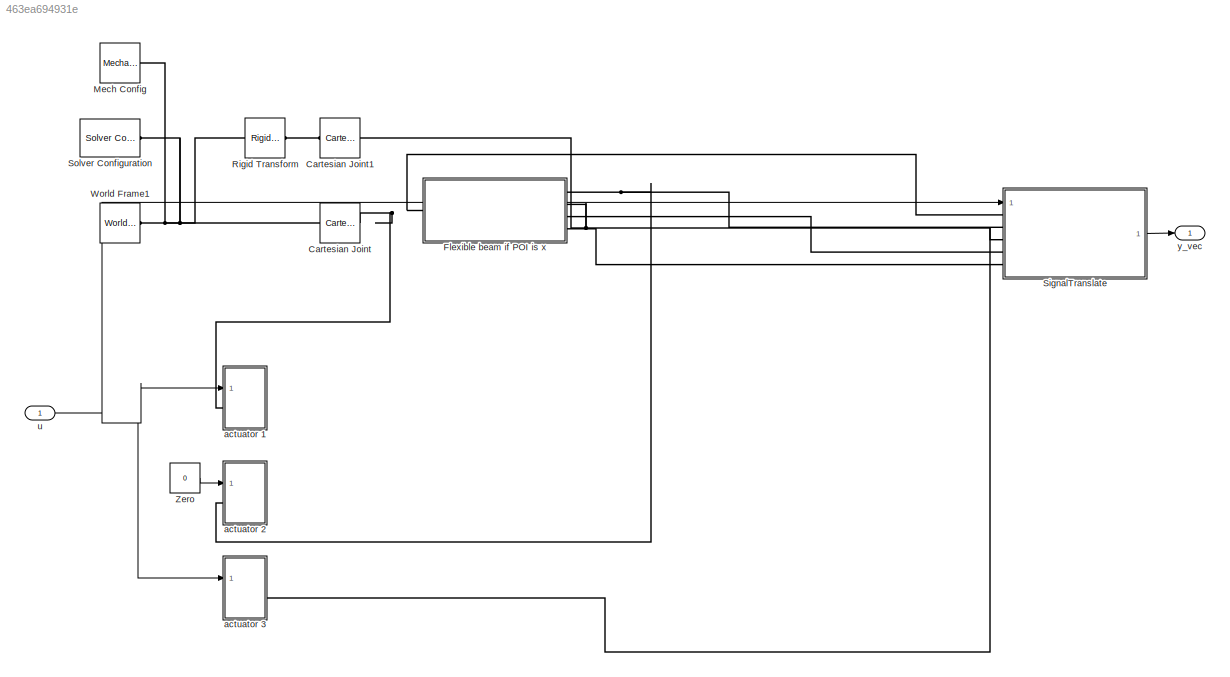
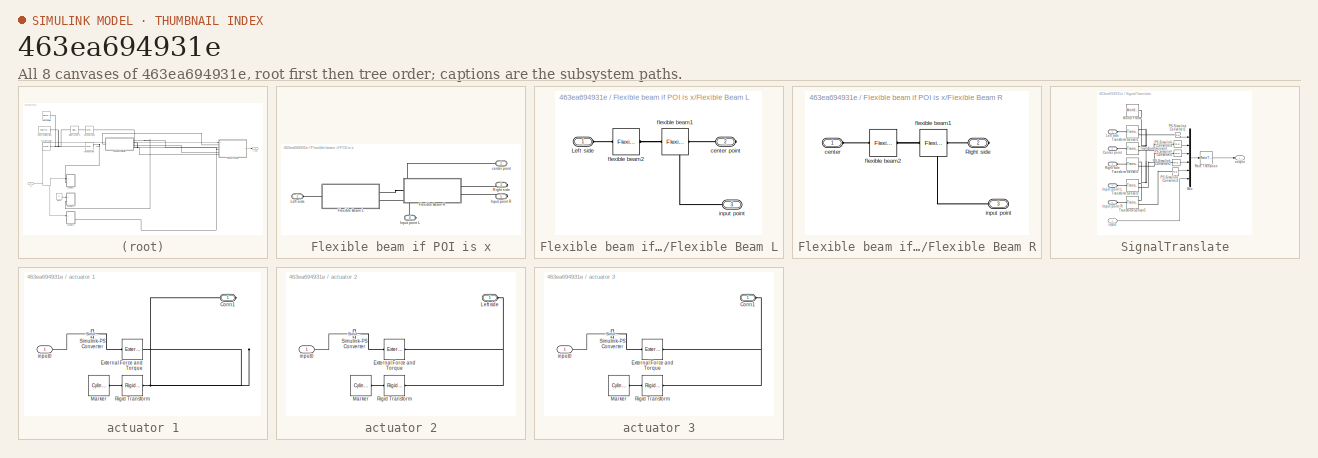
[diagram: thumbnail index - all 8 canvases of the model, root first then tree order]
MODEL slx_463ea694931e
KIND model
CONFIG AbsTol = auto
CONFIG EnableMultiTasking = off
CONFIG FixedStep = Ts
CONFIG MaxStep = auto
CONFIG MinStep = auto
CONFIG RelTol = auto
CONFIG SampleTimeConstraint = Unconstrained
CONFIG SolverName = ode23t
CONFIG StartTime = 0.0
CONFIG StopTime = Tend
BLOCK [Reference] Cartesian Joint  REF=sm_lib/Joints/Cartesian
Joint
  Ports = [0, 0, 0, 0, 0, 1, 1]
  SourceBlock = sm_lib/Joints/Cartesian\nJoint
  SourceProductBaseCode = MS
  SourceType = Cartesian\nJoint
BLOCK [Reference] Cartesian Joint1  REF=sm_lib/Joints/Cartesian
Joint
  Ports = [0, 0, 0, 0, 0, 1, 1]
  SourceBlock = sm_lib/Joints/Cartesian\nJoint
  SourceProductBaseCode = MS
  SourceType = Cartesian\nJoint
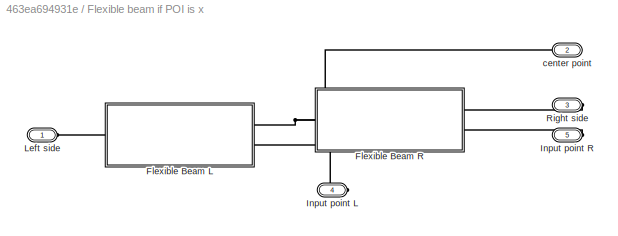
BLOCK [SubSystem] Flexible beam if POI is x
  Ports = [0, 0, 0, 0, 0, 1, 4]
  RequestExecContextInheritance = off
BLOCK [SubSystem] Flexible beam if POI is x/Flexible Beam L
  Ports = [0, 0, 0, 0, 0, 1, 2]
  RequestExecContextInheritance = off
BLOCK [PMIOPort] Flexible beam if POI is x/Flexible Beam L/Left side
  Side = Left
BLOCK [PMIOPort] Flexible beam if POI is x/Flexible Beam L/center point
  Port = 2
  Side = Right
BLOCK [Reference] Flexible beam if POI is x/Flexible Beam L/flexible beam1  REF=sm_lib/Body Elements/Flexible Bodies/Beams/Flexible Rectangular Beam
  Ports = [0, 0, 0, 0, 0, 1, 1]
  SourceBlock = sm_lib/Body Elements/Flexible Bodies/Beams/Flexible Rectangular Beam
  SourceProductBaseCode = MS
  SourceType = Flexible Rectangular Beam
BLOCK [Reference] Flexible beam if POI is x/Flexible Beam L/flexible beam2  REF=sm_lib/Body Elements/Flexible Bodies/Beams/Flexible Rectangular Beam
  Ports = [0, 0, 0, 0, 0, 1, 1]
  SourceBlock = sm_lib/Body Elements/Flexible Bodies/Beams/Flexible Rectangular Beam
  SourceProductBaseCode = MS
  SourceType = Flexible Rectangular Beam
BLOCK [PMIOPort] Flexible beam if POI is x/Flexible Beam L/input point
  Port = 3
  Side = Right
BLOCK [SubSystem] Flexible beam if POI is x/Flexible Beam R
  Ports = [0, 0, 0, 0, 0, 1, 2]
  RequestExecContextInheritance = off
BLOCK [PMIOPort] Flexible beam if POI is x/Flexible Beam R/Right side
  Port = 2
  Side = Right
BLOCK [PMIOPort] Flexible beam if POI is x/Flexible Beam R/center
  Side = Left
BLOCK [Reference] Flexible beam if POI is x/Flexible Beam R/flexible beam1  REF=sm_lib/Body Elements/Flexible Bodies/Beams/Flexible Rectangular Beam
  Ports = [0, 0, 0, 0, 0, 1, 1]
  SourceBlock = sm_lib/Body Elements/Flexible Bodies/Beams/Flexible Rectangular Beam
  SourceProductBaseCode = MS
  SourceType = Flexible Rectangular Beam
BLOCK [Reference] Flexible beam if POI is x/Flexible Beam R/flexible beam2  REF=sm_lib/Body Elements/Flexible Bodies/Beams/Flexible Rectangular Beam
  Ports = [0, 0, 0, 0, 0, 1, 1]
  SourceBlock = sm_lib/Body Elements/Flexible Bodies/Beams/Flexible Rectangular Beam
  SourceProductBaseCode = MS
  SourceType = Flexible Rectangular Beam
BLOCK [PMIOPort] Flexible beam if POI is x/Flexible Beam R/input point
  Port = 3
  Side = Right
BLOCK [PMIOPort] Flexible beam if POI is x/Input point L
  Port = 4
  Side = Right
BLOCK [PMIOPort] Flexible beam if POI is x/Input point R
  Port = 5
  Side = Right
BLOCK [PMIOPort] Flexible beam if POI is x/Left side
  Side = Left
BLOCK [PMIOPort] Flexible beam if POI is x/Right side
  Port = 3
  Side = Right
BLOCK [PMIOPort] Flexible beam if POI is x/center point
  Port = 2
  Side = Right
BLOCK [Reference] Mech Config  REF=sm_lib/Utilities/Mechanism
Configuration
  Ports = [0, 0, 0, 0, 0, 0, 1]
  SourceBlock = sm_lib/Utilities/Mechanism\nConfiguration
  SourceProductBaseCode = MS
  SourceType = Mechanism\nConfiguration
BLOCK [Reference] Rigid Transform  REF=sm_lib/Frames and
Transforms/Rigid
Transform
  Ports = [0, 0, 0, 0, 0, 1, 1]
  SourceBlock = sm_lib/Frames and\nTransforms/Rigid\nTransform
  SourceProductBaseCode = MS
  SourceType = Rigid\nTransform
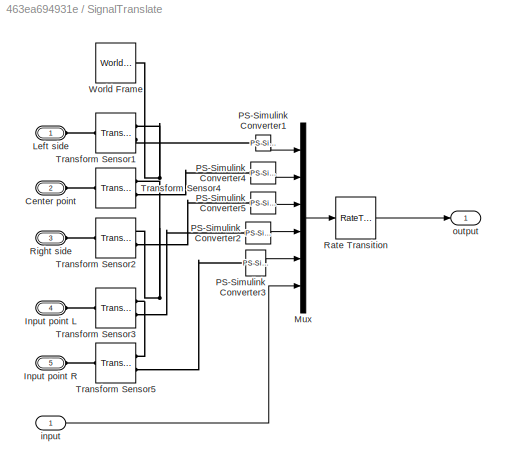
BLOCK [SubSystem] SignalTranslate
  PortSchema = {"entries":[{"content":{"sides":[{"content":{"connectorIds":["LConn1","LConn2","LConn3","LConn4","LConn5","In1"]},"type":"ConnectorPlacement.EquallySpacedRectSide","uuid":"234c9a80-d23e-49e1-9cbd-99fca326f122"},{"content":{"connectorIds":["Out1"],"side":"RIGHT"},"type":"ConnectorPlacement.EquallySpacedRectSide","uuid":"6db32332-576e-4b5c-b4cd-e0ec4edd412e"},{"content":{"connectorIds":[],"side":"TO...<+285ch>
  Ports = [1, 1, 0, 0, 0, 5]
  RequestExecContextInheritance = off
BLOCK [PMIOPort] SignalTranslate/Center point
  Port = 2
  Side = Left
BLOCK [PMIOPort] SignalTranslate/Input point L
  Port = 4
  Side = Left
BLOCK [PMIOPort] SignalTranslate/Input point R
  Port = 5
  Side = Left
BLOCK [PMIOPort] SignalTranslate/Left side
  Side = Left
BLOCK [Mux] SignalTranslate/Mux
  DisplayOption = bar
  Inputs = 6
  Ports = [6, 1]
BLOCK [Reference] SignalTranslate/PS-Simulink Converter1  REF=nesl_utility/PS-Simulink
Converter
  Ports = [0, 1, 0, 0, 0, 1]
  SourceBlock = nesl_utility/PS-Simulink\nConverter
  SourceProductBaseCode = PW,SS
  SourceType = PS-Simulink\nConverter
BLOCK [Reference] SignalTranslate/PS-Simulink Converter2  REF=nesl_utility/PS-Simulink
Converter
  Ports = [0, 1, 0, 0, 0, 1]
  SourceBlock = nesl_utility/PS-Simulink\nConverter
  SourceProductBaseCode = PW,SS
  SourceType = PS-Simulink\nConverter
BLOCK [Reference] SignalTranslate/PS-Simulink Converter3  REF=nesl_utility/PS-Simulink
Converter
  Ports = [0, 1, 0, 0, 0, 1]
  SourceBlock = nesl_utility/PS-Simulink\nConverter
  SourceProductBaseCode = PW,SS
  SourceType = PS-Simulink\nConverter
BLOCK [Reference] SignalTranslate/PS-Simulink Converter4  REF=nesl_utility/PS-Simulink
Converter
  Ports = [0, 1, 0, 0, 0, 1]
  SourceBlock = nesl_utility/PS-Simulink\nConverter
  SourceProductBaseCode = PW,SS
  SourceType = PS-Simulink\nConverter
BLOCK [Reference] SignalTranslate/PS-Simulink Converter5  REF=nesl_utility/PS-Simulink
Converter
  Ports = [0, 1, 0, 0, 0, 1]
  SourceBlock = nesl_utility/PS-Simulink\nConverter
  SourceProductBaseCode = PW,SS
  SourceType = PS-Simulink\nConverter
BLOCK [RateTransition] SignalTranslate/Rate Transition
  OutPortSampleTime = Ts
BLOCK [PMIOPort] SignalTranslate/Right side
  Port = 3
  Side = Left
BLOCK [Reference] SignalTranslate/Transform Sensor1  REF=sm_lib/Frames and
Transforms/Transform
Sensor
  Ports = [0, 0, 0, 0, 0, 1, 2]
  SourceBlock = sm_lib/Frames and\nTransforms/Transform\nSensor
  SourceProductBaseCode = MS
  SourceType = Transform\nSensor
BLOCK [Reference] SignalTranslate/Transform Sensor2  REF=sm_lib/Frames and
Transforms/Transform
Sensor
  Ports = [0, 0, 0, 0, 0, 1, 2]
  SourceBlock = sm_lib/Frames and\nTransforms/Transform\nSensor
  SourceProductBaseCode = MS
  SourceType = Transform\nSensor
BLOCK [Reference] SignalTranslate/Transform Sensor3  REF=sm_lib/Frames and
Transforms/Transform
Sensor
  Ports = [0, 0, 0, 0, 0, 1, 2]
  SourceBlock = sm_lib/Frames and\nTransforms/Transform\nSensor
  SourceProductBaseCode = MS
  SourceType = Transform\nSensor
BLOCK [Reference] SignalTranslate/Transform Sensor4  REF=sm_lib/Frames and
Transforms/Transform
Sensor
  Ports = [0, 0, 0, 0, 0, 1, 2]
  SourceBlock = sm_lib/Frames and\nTransforms/Transform\nSensor
  SourceProductBaseCode = MS
  SourceType = Transform\nSensor
BLOCK [Reference] SignalTranslate/Transform Sensor5  REF=sm_lib/Frames and
Transforms/Transform
Sensor
  Ports = [0, 0, 0, 0, 0, 1, 2]
  SourceBlock = sm_lib/Frames and\nTransforms/Transform\nSensor
  SourceProductBaseCode = MS
  SourceType = Transform\nSensor
BLOCK [Reference] SignalTranslate/World Frame  REF=sm_lib/Frames and
Transforms/World Frame
  Ports = [0, 0, 0, 0, 0, 0, 1]
  SourceBlock = sm_lib/Frames and\nTransforms/World Frame
  SourceProductBaseCode = MS
  SourceType = World Frame
BLOCK [Inport] SignalTranslate/input
BLOCK [Outport] SignalTranslate/output
BLOCK [Reference] Solver Configuration  REF=nesl_utility/Solver
Configuration
  Ports = [0, 0, 0, 0, 0, 0, 1]
  SourceBlock = nesl_utility/Solver\nConfiguration
  SourceProductBaseCode = SS
  SourceType = Solver\nConfiguration
BLOCK [Reference] World Frame1  REF=sm_lib/Frames and
Transforms/World Frame
  Ports = [0, 0, 0, 0, 0, 0, 1]
  SourceBlock = sm_lib/Frames and\nTransforms/World Frame
  SourceProductBaseCode = MS
  SourceType = World Frame
BLOCK [Constant] Zero
  OutDataTypeStr = Inherit: Inherit via back propagation
  Value = 0
BLOCK [SubSystem] actuator 1
  Ports = [1, 0, 0, 0, 0, 1]
  RequestExecContextInheritance = off
BLOCK [PMIOPort] actuator 1/Conn1
  Side = Left
BLOCK [Reference] actuator 1/External Force and Torque  REF=sm_lib/Forces and
Torques/External Force
and Torque
  Ports = [0, 0, 0, 0, 0, 1, 1]
  SourceBlock = sm_lib/Forces and\nTorques/External Force\nand Torque
  SourceProductBaseCode = MS
  SourceType = External Force\nand Torque
BLOCK [Reference] actuator 1/Marker  REF=sm_lib/Body Elements/Cylindrical Solid
  Ports = [0, 0, 0, 0, 0, 1]
  SourceBlock = sm_lib/Body Elements/Cylindrical Solid
  SourceProductBaseCode = MS
  SourceType = Cylindrical Solid
BLOCK [Reference] actuator 1/Rigid Transform  REF=sm_lib/Frames and
Transforms/Rigid
Transform
  Ports = [0, 0, 0, 0, 0, 1, 1]
  SourceBlock = sm_lib/Frames and\nTransforms/Rigid\nTransform
  SourceProductBaseCode = MS
  SourceType = Rigid\nTransform
BLOCK [Reference] actuator 1/Simulink-PS Converter  REF=nesl_utility/Simulink-PS
Converter
  Ports = [1, 0, 0, 0, 0, 0, 1]
  SourceBlock = nesl_utility/Simulink-PS\nConverter
  SourceProductBaseCode = PW,SS
  SourceType = Simulink-PS\nConverter
BLOCK [Inport] actuator 1/input0
BLOCK [SubSystem] actuator 2
  Ports = [1, 0, 0, 0, 0, 1]
  RequestExecContextInheritance = off
BLOCK [Reference] actuator 2/External Force and Torque  REF=sm_lib/Forces and
Torques/External Force
and Torque
  Ports = [0, 0, 0, 0, 0, 1, 1]
  SourceBlock = sm_lib/Forces and\nTorques/External Force\nand Torque
  SourceProductBaseCode = MS
  SourceType = External Force\nand Torque
BLOCK [PMIOPort] actuator 2/Left side
  Side = Left
BLOCK [Reference] actuator 2/Marker  REF=sm_lib/Body Elements/Cylindrical Solid
  Ports = [0, 0, 0, 0, 0, 1]
  SourceBlock = sm_lib/Body Elements/Cylindrical Solid
  SourceProductBaseCode = MS
  SourceType = Cylindrical Solid
BLOCK [Reference] actuator 2/Rigid Transform  REF=sm_lib/Frames and
Transforms/Rigid
Transform
  Ports = [0, 0, 0, 0, 0, 1, 1]
  SourceBlock = sm_lib/Frames and\nTransforms/Rigid\nTransform
  SourceProductBaseCode = MS
  SourceType = Rigid\nTransform
BLOCK [Reference] actuator 2/Simulink-PS Converter  REF=nesl_utility/Simulink-PS
Converter
  Ports = [1, 0, 0, 0, 0, 0, 1]
  SourceBlock = nesl_utility/Simulink-PS\nConverter
  SourceProductBaseCode = PW,SS
  SourceType = Simulink-PS\nConverter
BLOCK [Inport] actuator 2/input0
BLOCK [SubSystem] actuator 3
  Ports = [1, 0, 0, 0, 0, 1]
  RequestExecContextInheritance = off
BLOCK [PMIOPort] actuator 3/Conn1
  Side = Left
BLOCK [Reference] actuator 3/External Force and Torque  REF=sm_lib/Forces and
Torques/External Force
and Torque
  Ports = [0, 0, 0, 0, 0, 1, 1]
  SourceBlock = sm_lib/Forces and\nTorques/External Force\nand Torque
  SourceProductBaseCode = MS
  SourceType = External Force\nand Torque
BLOCK [Reference] actuator 3/Marker  REF=sm_lib/Body Elements/Cylindrical Solid
  Ports = [0, 0, 0, 0, 0, 1]
  SourceBlock = sm_lib/Body Elements/Cylindrical Solid
  SourceProductBaseCode = MS
  SourceType = Cylindrical Solid
BLOCK [Reference] actuator 3/Rigid Transform  REF=sm_lib/Frames and
Transforms/Rigid
Transform
  Ports = [0, 0, 0, 0, 0, 1, 1]
  SourceBlock = sm_lib/Frames and\nTransforms/Rigid\nTransform
  SourceProductBaseCode = MS
  SourceType = Rigid\nTransform
BLOCK [Reference] actuator 3/Simulink-PS Converter  REF=nesl_utility/Simulink-PS
Converter
  Ports = [1, 0, 0, 0, 0, 0, 1]
  SourceBlock = nesl_utility/Simulink-PS\nConverter
  SourceProductBaseCode = PW,SS
  SourceType = Simulink-PS\nConverter
BLOCK [Inport] actuator 3/input0
BLOCK [Inport] u
BLOCK [Outport] y_vec
LINE SignalTranslate/Mux:1 -> SignalTranslate/Rate Transition:1
LINE SignalTranslate/PS-Simulink Converter1:1 -> SignalTranslate/Mux:1
LINE SignalTranslate/PS-Simulink Converter2:1 -> SignalTranslate/Mux:4
LINE SignalTranslate/PS-Simulink Converter3:1 -> SignalTranslate/Mux:5
LINE SignalTranslate/PS-Simulink Converter4:1 -> SignalTranslate/Mux:2
LINE SignalTranslate/PS-Simulink Converter5:1 -> SignalTranslate/Mux:3
LINE SignalTranslate/Rate Transition:1 -> SignalTranslate/output:1
LINE SignalTranslate/input:1 -> SignalTranslate/Mux:6
LINE SignalTranslate:1 -> y_vec:1
LINE Zero:1 -> actuator 2:1
LINE actuator 1/input0:1 -> actuator 1/Simulink-PS Converter:1
LINE actuator 2/input0:1 -> actuator 2/Simulink-PS Converter:1
LINE actuator 3/input0:1 -> actuator 3/Simulink-PS Converter:1
NET u:1 -> SignalTranslate:1, actuator 1:1, actuator 3:1
PLINE Cartesian Joint1:LConn1 -- Rigid Transform:RConn1
PNET net1: Cartesian Joint1:RConn1 -- Flexible beam if POI is x:RConn2 -- SignalTranslate:LConn3 -- actuator 3:LConn1
PNET net2: Cartesian Joint:LConn1 -- Mech Config:RConn1 -- Rigid Transform:LConn1 -- Solver Configuration:RConn1 -- World Frame1:RConn1
PNET net3: Cartesian Joint:RConn1 -- Flexible beam if POI is x:LConn1 -- SignalTranslate:LConn1 -- actuator 1:LConn1
PLINE Flexible beam if POI is x/Flexible Beam L/Left side:RConn1 -- Flexible beam if POI is x/Flexible Beam L/flexible beam2:LConn1
PLINE Flexible beam if POI is x/Flexible Beam L/center point:RConn1 -- Flexible beam if POI is x/Flexible Beam L/flexible beam1:RConn1
PNET net4: Flexible beam if POI is x/Flexible Beam L/flexible beam1:LConn1 -- Flexible beam if POI is x/Flexible Beam L/flexible beam2:RConn1 -- Flexible beam if POI is x/Flexible Beam L/input point:RConn1
PLINE Flexible beam if POI is x/Flexible Beam L:LConn1 -- Flexible beam if POI is x/Left side:RConn1
PNET net5: Flexible beam if POI is x/Flexible Beam L:RConn1 -- Flexible beam if POI is x/Flexible Beam R:LConn1 -- Flexible beam if POI is x/center point:RConn1
PLINE Flexible beam if POI is x/Flexible Beam L:RConn2 -- Flexible beam if POI is x/Input point L:RConn1
PLINE Flexible beam if POI is x/Flexible Beam R/Right side:RConn1 -- Flexible beam if POI is x/Flexible Beam R/flexible beam1:RConn1
PLINE Flexible beam if POI is x/Flexible Beam R/center:RConn1 -- Flexible beam if POI is x/Flexible Beam R/flexible beam2:LConn1
PNET net6: Flexible beam if POI is x/Flexible Beam R/flexible beam1:LConn1 -- Flexible beam if POI is x/Flexible Beam R/flexible beam2:RConn1 -- Flexible beam if POI is x/Flexible Beam R/input point:RConn1
PLINE Flexible beam if POI is x/Flexible Beam R:RConn1 -- Flexible beam if POI is x/Right side:RConn1
PLINE Flexible beam if POI is x/Flexible Beam R:RConn2 -- Flexible beam if POI is x/Input point R:RConn1
PNET net7: Flexible beam if POI is x:RConn1 -- SignalTranslate:LConn2 -- actuator 2:LConn1
PLINE Flexible beam if POI is x:RConn3 -- SignalTranslate:LConn4
PLINE Flexible beam if POI is x:RConn4 -- SignalTranslate:LConn5
PLINE SignalTranslate/Center point:RConn1 -- SignalTranslate/Transform Sensor4:LConn1
PLINE SignalTranslate/Input point L:RConn1 -- SignalTranslate/Transform Sensor3:LConn1
PLINE SignalTranslate/Input point R:RConn1 -- SignalTranslate/Transform Sensor5:LConn1
PLINE SignalTranslate/Left side:RConn1 -- SignalTranslate/Transform Sensor1:LConn1
PLINE SignalTranslate/PS-Simulink Converter1:LConn1 -- SignalTranslate/Transform Sensor1:RConn2
PLINE SignalTranslate/PS-Simulink Converter2:LConn1 -- SignalTranslate/Transform Sensor3:RConn2
PLINE SignalTranslate/PS-Simulink Converter3:LConn1 -- SignalTranslate/Transform Sensor5:RConn2
PLINE SignalTranslate/PS-Simulink Converter4:LConn1 -- SignalTranslate/Transform Sensor4:RConn2
PLINE SignalTranslate/PS-Simulink Converter5:LConn1 -- SignalTranslate/Transform Sensor2:RConn2
PLINE SignalTranslate/Right side:RConn1 -- SignalTranslate/Transform Sensor2:LConn1
PNET net8: SignalTranslate/Transform Sensor1:RConn1 -- SignalTranslate/Transform Sensor2:RConn1 -- SignalTranslate/Transform Sensor3:RConn1 -- SignalTranslate/Transform Sensor4:RConn1 -- SignalTranslate/Transform Sensor5:RConn1 -- SignalTranslate/World Frame:RConn1
PNET net9: actuator 1/Conn1:RConn1 -- actuator 1/External Force and Torque:RConn1 -- actuator 1/Rigid Transform:RConn1
PLINE actuator 1/External Force and Torque:LConn1 -- actuator 1/Simulink-PS Converter:RConn1
PLINE actuator 1/Marker:LConn1 -- actuator 1/Rigid Transform:LConn1
PLINE actuator 2/External Force and Torque:LConn1 -- actuator 2/Simulink-PS Converter:RConn1
PNET net10: actuator 2/External Force and Torque:RConn1 -- actuator 2/Left side:RConn1 -- actuator 2/Rigid Transform:RConn1
PLINE actuator 2/Marker:LConn1 -- actuator 2/Rigid Transform:LConn1
PNET net11: actuator 3/Conn1:RConn1 -- actuator 3/External Force and Torque:RConn1 -- actuator 3/Rigid Transform:RConn1
PLINE actuator 3/External Force and Torque:LConn1 -- actuator 3/Simulink-PS Converter:RConn1
PLINE actuator 3/Marker:LConn1 -- actuator 3/Rigid Transform:LConn1
note: NET lines group one-source signal fan-out (src -> all destinations, sorted); 1:1 wires keep LINE; PNET lines group multi-terminal physical nets as a canonical sorted terminal list (undirected conserving connections); 2-terminal nets keep the pairwise PLINE form
